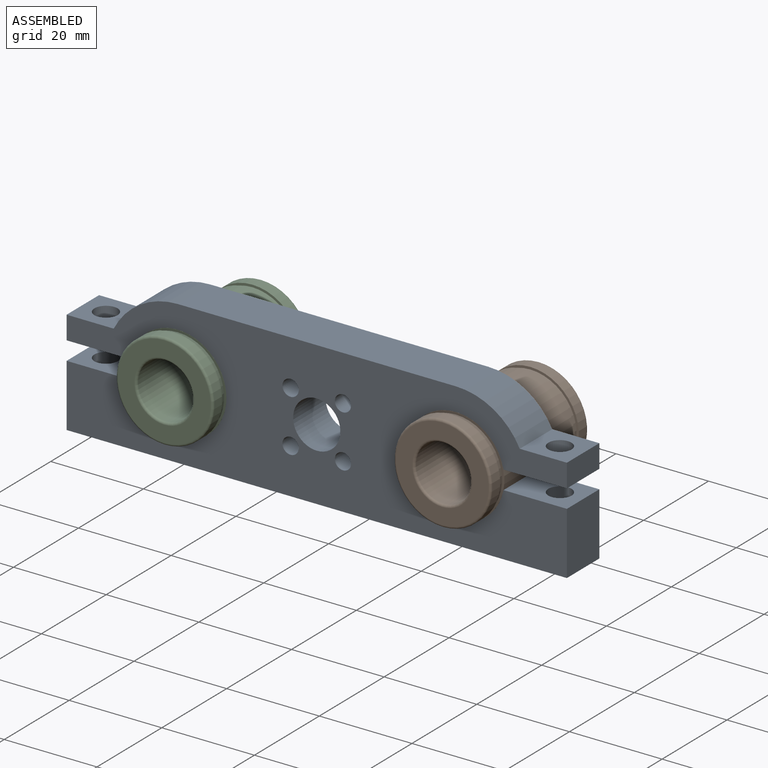
[diagram: assembled view]
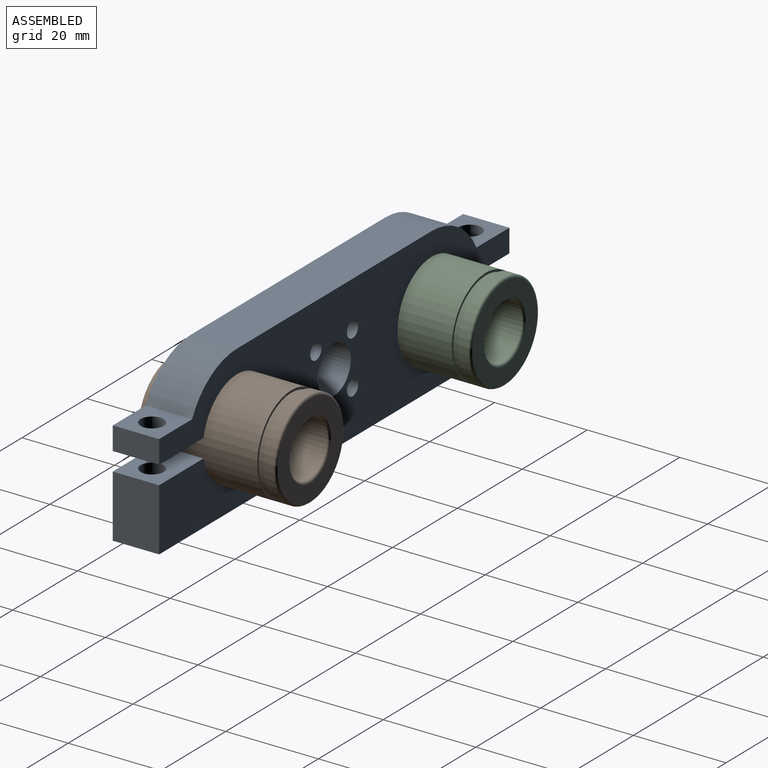
[diagram: assembled view, second angle]
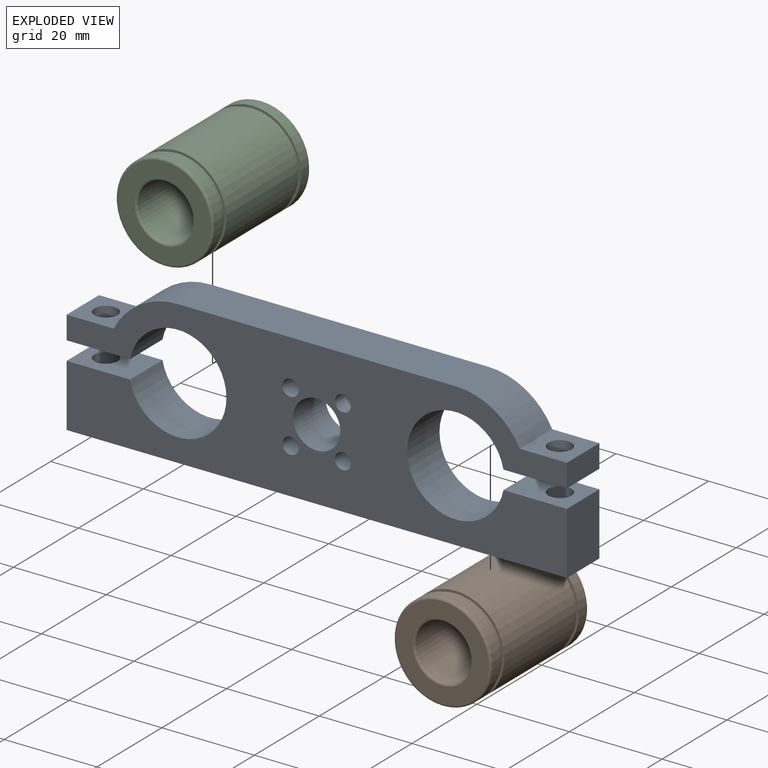
[diagram: exploded view]
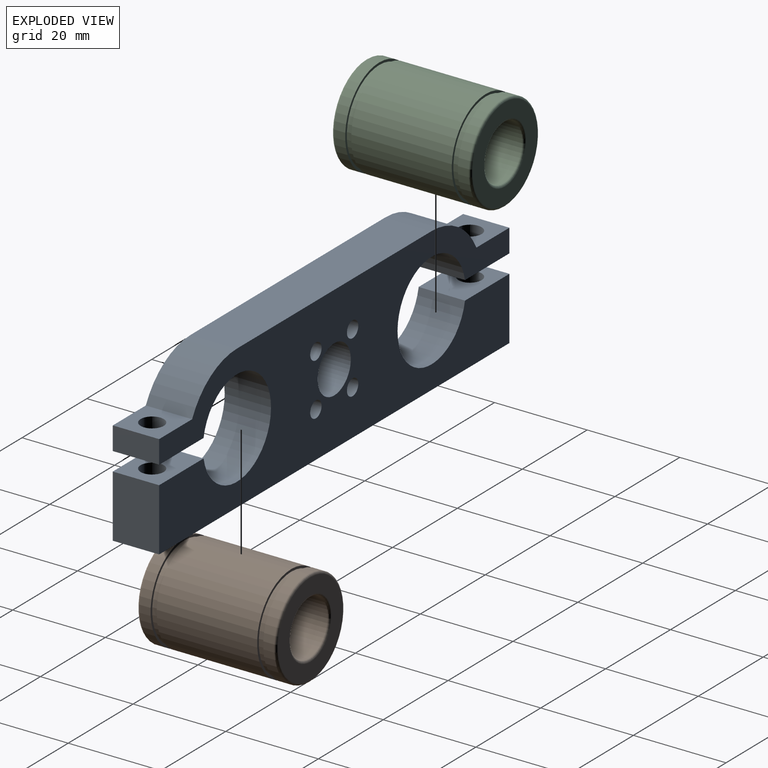
[diagram: exploded view, second angle]
ASSEMBLY  parts=3 mates=4
PART A: 31 faces, bbox 108x10x31 mm
  f0: plane 108x10mm, normal (0,0,-1), area 1001.5mm2, adj f1,f15,f16,f17,f23,f26,f27,f29
  f1: plane 13.5x10mm, normal (1,0,0), area 135mm2, adj f0,f2,f16,f17
  f2: plane 13.69x10mm, normal (0,0,1), area 117.3mm2, adj f1,f3,f16,f17,f26
  f3: cylinder r=10.5mm len=21mm, axis (0,1,0), area 619.5mm2, adj f2,f4,f16,f17
  f4: plane 13.69x10mm, normal (0,0,-1), area 117.3mm2, adj f3,f5,f16,f17,f25
  f5: plane 10x5mm, normal (1,0,0), area 50mm2, adj f4,f6,f16,f17
  f6: plane 10.17x10mm, normal (0,0,1), area 82.1mm2, adj f5,f7,f16,f17,f25
  f7: cylinder r=15.5mm len=13.83mm, axis (0,1,0), area 170.8mm2, adj f6,f8,f16,f17
  f8: plane 60x10mm, normal (0,0,1), area 600mm2, adj f7,f9,f16,f17
  f9: cylinder r=15.5mm len=13.83mm, axis (0,1,0), area 170.8mm2, adj f8,f10,f16,f17
  f10: plane 10.17x10mm, normal (0,0,1), area 82.1mm2, adj f9,f11,f16,f17,f24
  f11: plane 10x5mm, normal (-1,0,0), area 50mm2, adj f10,f12,f16,f17
  f12: plane 13.69x10mm, normal (0,0,-1), area 117.3mm2, adj f11,f13,f16,f17,f24
  f13: cylinder r=10.5mm len=21mm, axis (0,1,0), area 619.5mm2, adj f12,f14,f16,f17
  f14: plane 13.69x10mm, normal (0,0,1), area 117.3mm2, adj f13,f15,f16,f17,f23
  f15: plane 13.5x10mm, normal (-1,0,0), area 135mm2, adj f0,f14,f16,f17
  f16: plane 108x31mm, normal (0,-1,0), area 2186.6mm2, adj f0,f1,f2,f3,f4,f5,f6,f7
  f17: plane 108x31mm, normal (0,1,0), area 2186.6mm2, adj f0,f1,f2,f3,f4,f5,f6,f7
  f18: cylinder r=5.1mm len=10.2mm, axis (0,-1,0), area 320.4mm2, adj f16,f17
  f19: cylinder r=1.75mm len=10mm, axis (0,-1,0), area 110mm2, adj f16,f17
  f20: cylinder r=1.75mm len=10mm, axis (0,-1,0), area 110mm2, adj f16,f17
  f21: cylinder r=1.75mm len=10mm, axis (0,-1,0), area 110mm2, adj f16,f17
  f22: cylinder r=1.75mm len=10mm, axis (0,-1,0), area 110mm2, adj f16,f17
  f23: cylinder r=2.5mm len=13.5mm, axis (0,0,-1), area 212.1mm2, adj f0,f14
  f24: cylinder r=2.5mm len=5mm, axis (0,0,-1), area 78.5mm2, adj f10,f12
  f25: cylinder r=2.5mm len=5mm, axis (0,0,-1), area 78.5mm2, adj f4,f6
  f26: cylinder r=2.5mm len=13.5mm, axis (0,0,-1), area 212.1mm2, adj f0,f2
  f27: cylinder r=2.5mm len=10mm, axis (0,0,-1), area 157.1mm2, adj f0,f28
  f28: plane 5x5mm, normal (0,0,-1), area 19.6mm2, adj f27
  f29: cylinder r=2.5mm len=10mm, axis (0,0,-1), area 157.1mm2, adj f0,f30
  f30: plane 5x5mm, normal (0,0,-1), area 19.6mm2, adj f29
PART B: 16 faces, bbox 30x22.7x22.7 mm
  f0: cylinder r=6mm len=29mm, axis (1,0,0), area 1093.3mm2, adj f1,f15
  f1: torus R=6.5mm, axis (1,0,0), area 30.5mm2, adj f0,f2
  f2: plane 20x20mm, normal (1,0,0), area 181.4mm2, adj f1,f3
  f3: torus R=10mm, axis (1,0,0), area 50.9mm2, adj f2,f4
  f4: cylinder r=10.5mm len=21mm, axis (1,0,0), area 155mm2, adj f3,f5
  f5: plane 21x21mm, normal (-1,0,0), area 32.2mm2, adj f4,f6
  f6: cylinder r=10mm len=20mm, axis (1,0,0), area 81.7mm2, adj f5,f7
  f7: plane 21x21mm, normal (1,0,0), area 32.2mm2, adj f6,f8
  f8: cylinder r=10.5mm len=21.7mm, axis (1,0,0), area 1431.6mm2, adj f7,f9
  f9: plane 21x21mm, normal (-1,0,0), area 32.2mm2, adj f8,f10
  f10: cylinder r=10mm len=20mm, axis (1,0,0), area 81.7mm2, adj f9,f11
  f11: plane 21x21mm, normal (1,0,0), area 32.2mm2, adj f10,f12
  f12: cylinder r=10.5mm len=21mm, axis (1,0,0), area 155mm2, adj f11,f13
  f13: torus R=10mm, axis (1,0,0), area 50.9mm2, adj f12,f14
  f14: plane 20x20mm, normal (-1,0,0), area 181.4mm2, adj f13,f15
  f15: torus R=6.5mm, axis (1,0,0), area 30.5mm2, adj f0,f14
PART C: same geometry as B
PLACE A t=(7.68,-73.19,-47.28)mm
PLACE B rot(axis=(0.28,0.28,0.92),95deg) t=(35.22,-62.57,-35.38)mm
PLACE C rot(axis=(0.28,0.28,0.92),95deg) t=(-24.78,-62.57,-35.38)mm
MATE planar C.f13 <-> A.f16  axis (0,-1,0) through (-22.32,-83.19,-31.78)mm
MATE planar B.f13 <-> A.f16  axis (0,-1,0) through (37.68,-83.19,-31.78)mm
MATE cylindrical B.f13 <-> A.f3  axis (0,1,0) through (37.68,-83.19,-31.78)mm
MATE cylindrical A.f9 <-> C.f13  axis (0,1,0) through (-22.32,-78.19,-31.78)mm
